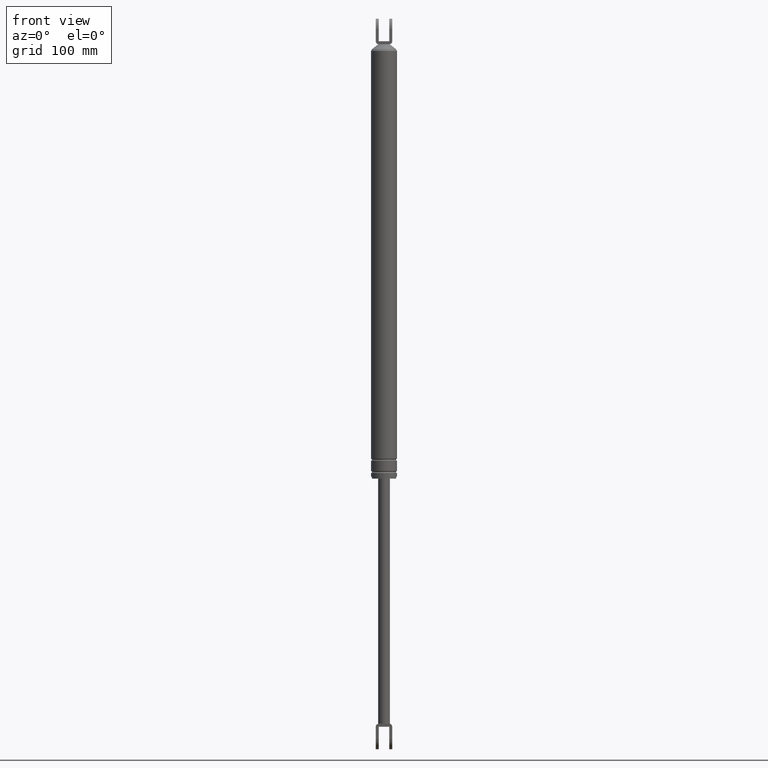
[diagram: clean part render]
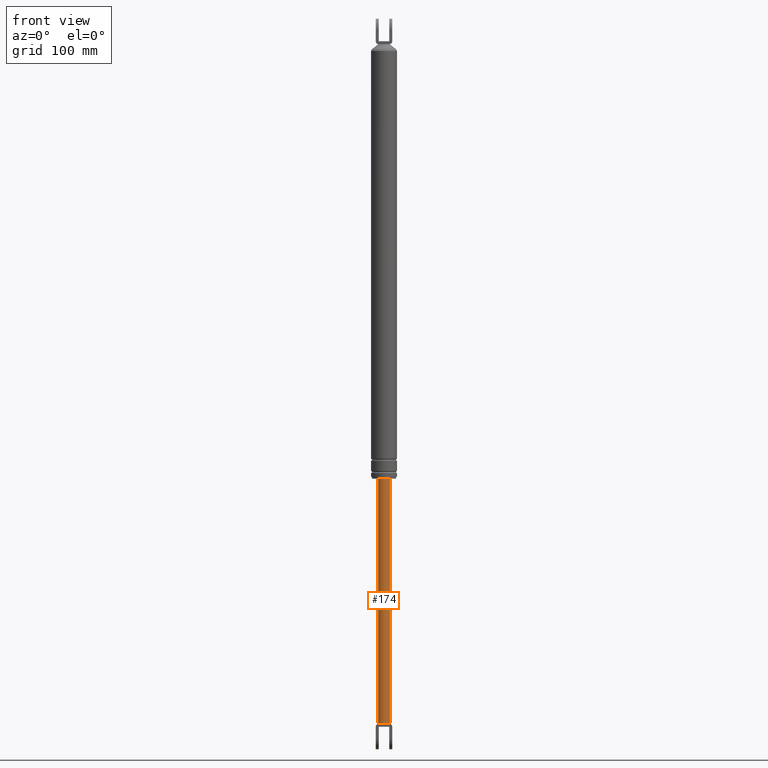
[diagram: same view with one face highlighted and labeled with its STEP entity id]
A machine part, front view. The second image highlights one B-rep face of the part: STEP entity #174.
In plain terms, the highlighted cylindrical surface (edge-blend (fillet) strip) has radius 6.25 mm, axis along (0, 0, 1).
Its self-contained STEP definition (entity closure, byte-faithful):
#174=ADVANCED_FACE('',(#805),#804,.T.);
#804=CYLINDRICAL_SURFACE('',#1388,6.25000000000E+000);
#805=FACE_OUTER_BOUND('',#1389,.T.);
#1385=CARTESIAN_POINT('',(0.00000000000E+000,0.00000000000E+000,7.87799987000E+002));
#1386=DIRECTION('',(-0.00000000000E+000,-0.00000000000E+000,1.00000000000E+000));
#1387=DIRECTION('',(1.00000000000E+000,-0.00000000000E+000,-0.00000000000E+000));
#1388=AXIS2_PLACEMENT_3D('',#1385,#1386,#1387);
#1389=EDGE_LOOP('',(#1692,#1693,#1694,#1695,#1696,#1697));
#1692=ORIENTED_EDGE('',*,*,#1791,.F.);
#1693=ORIENTED_EDGE('',*,*,#1825,.F.);
#1694=ORIENTED_EDGE('',*,*,#1841,.F.);
#1695=ORIENTED_EDGE('',*,*,#1850,.T.);
#1696=ORIENTED_EDGE('',*,*,#1833,.F.);
#1697=ORIENTED_EDGE('',*,*,#1851,.F.);
#1791=EDGE_CURVE('',#2461,#2468,#2469,.T.);
#1825=EDGE_CURVE('',#2699,#2461,#2700,.T.);
#1833=EDGE_CURVE('',#2752,#2753,#2754,.T.);
#1841=EDGE_CURVE('',#2797,#2699,#2804,.T.);
#1850=EDGE_CURVE('',#2797,#2753,#2860,.T.);
#1851=EDGE_CURVE('',#2468,#2752,#2866,.T.);
#2461=VERTEX_POINT('',#3251);
#2468=VERTEX_POINT('',#3256);
#2469=CIRCLE('',#3260,6.25000000000E+000);
#2699=VERTEX_POINT('',#3407);
#2700=CIRCLE('',#3411,6.25000000000E+000);
#2752=VERTEX_POINT('',#3446);
#2753=VERTEX_POINT('',#3447);
#2754=CIRCLE('',#3451,6.25000000000E+000);
#2797=VERTEX_POINT('',#3475);
#2804=CIRCLE('',#3483,6.25000000000E+000);
#2860=(BOUNDED_CURVE() B_SPLINE_CURVE(1,(#3508,#3509),.UNSPECIFIED.,.F.,.F.) B_SPLINE_CURVE_WITH_KNOTS((2,2),(3.58422919179E-002,9.64157708207E-001),.UNSPECIFIED.) CURVE() GEOMETRIC_REPRESENTATION_ITEM() RATIONAL_B_SPLINE_CURVE((1.00000000000E+000,1.00000000000E+000)) REPRESENTATION_ITEM('') );
#2866=(BOUNDED_CURVE() B_SPLINE_CURVE(1,(#3510,#3511),.UNSPECIFIED.,.F.,.F.) B_SPLINE_CURVE_WITH_KNOTS((2,2),(3.58422918513E-002,9.64157708149E-001),.UNSPECIFIED.) CURVE() GEOMETRIC_REPRESENTATION_ITEM() RATIONAL_B_SPLINE_CURVE((7.50000000000E-001,7.50000000000E-001)) REPRESENTATION_ITEM('') );
#3251=CARTESIAN_POINT('',(-5.69999700000E+000,-2.56369541872E+000,-2.09000016000E+002));
#3256=CARTESIAN_POINT('',(-6.25000000000E+000,-1.32865964537E-008,-2.09000016000E+002));
#3257=CARTESIAN_POINT('',(0.00000000000E+000,0.00000000000E+000,-2.09000016000E+002));
#3258=DIRECTION('',(0.00000000000E+000,-0.00000000000E+000,-1.00000000000E+000));
#3259=DIRECTION('',(-9.11999520000E-001,4.10191266996E-001,-0.00000000000E+000));
#3260=AXIS2_PLACEMENT_3D('',#3257,#3258,#3259);
#3407=CARTESIAN_POINT('',(5.69999700000E+000,-2.56369541872E+000,-2.09000016000E+002));
#3408=CARTESIAN_POINT('',(0.00000000000E+000,0.00000000000E+000,-2.09000016000E+002));
#3409=DIRECTION('',(0.00000000000E+000,0.00000000000E+000,-1.00000000000E+000));
#3410=DIRECTION('',(-1.00000000000E+000,-0.00000000000E+000,-0.00000000000E+000));
#3411=AXIS2_PLACEMENT_3D('',#3408,#3409,#3410);
#3446=CARTESIAN_POINT('',(-6.25000000000E+000,0.00000000000E+000,5.00000000000E+001));
#3447=CARTESIAN_POINT('',(6.25000000000E+000,8.88178419700E-016,5.00000000000E+001));
#3448=CARTESIAN_POINT('',(0.00000000000E+000,0.00000000000E+000,5.00000000000E+001));
#3449=DIRECTION('',(0.00000000000E+000,0.00000000000E+000,1.00000000000E+000));
#3450=DIRECTION('',(-1.00000000000E+000,-1.22460635382E-016,0.00000000000E+000));
#3451=AXIS2_PLACEMENT_3D('',#3448,#3449,#3450);
#3475=CARTESIAN_POINT('',(6.25000000000E+000,8.12925012908E-016,-2.09000016000E+002));
#3480=CARTESIAN_POINT('',(0.00000000000E+000,0.00000000000E+000,-2.09000016000E+002));
#3481=DIRECTION('',(0.00000000000E+000,0.00000000000E+000,-1.00000000000E+000));
#3482=DIRECTION('',(-1.00000000000E+000,-0.00000000000E+000,-0.00000000000E+000));
#3483=AXIS2_PLACEMENT_3D('',#3480,#3481,#3482);
#3508=CARTESIAN_POINT('',(6.25000000000E+000,0.00000000000E+000,-2.09000015981E+002));
#3509=CARTESIAN_POINT('',(6.25000000000E+000,0.00000000000E+000,5.00000000163E+001));
#3510=CARTESIAN_POINT('',(-6.25000000000E+000,0.00000000000E+000,-2.09000016000E+002));
#3511=CARTESIAN_POINT('',(-6.25000000000E+000,0.00000000000E+000,5.00000000000E+001));